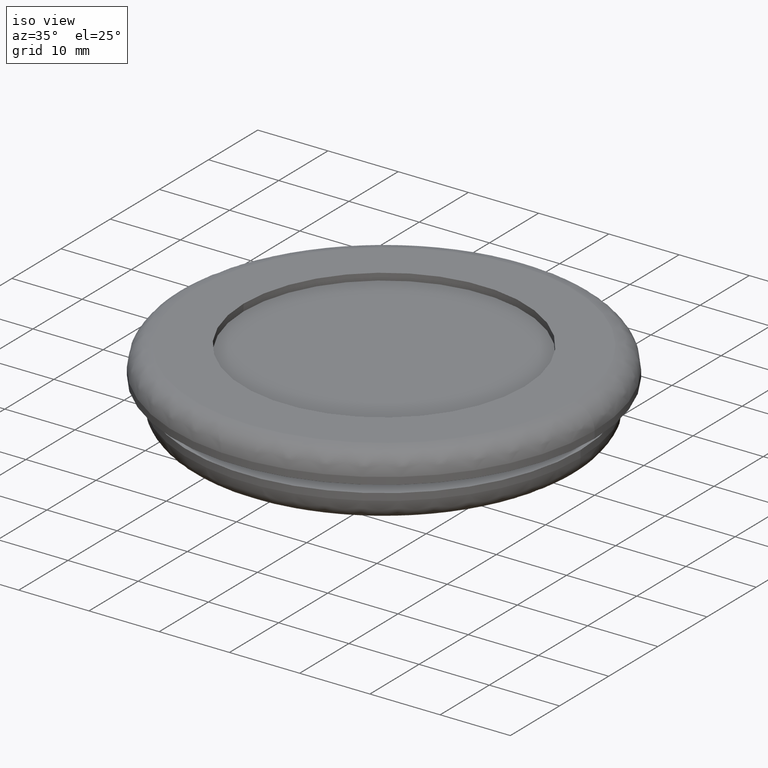
[diagram: clean part render]
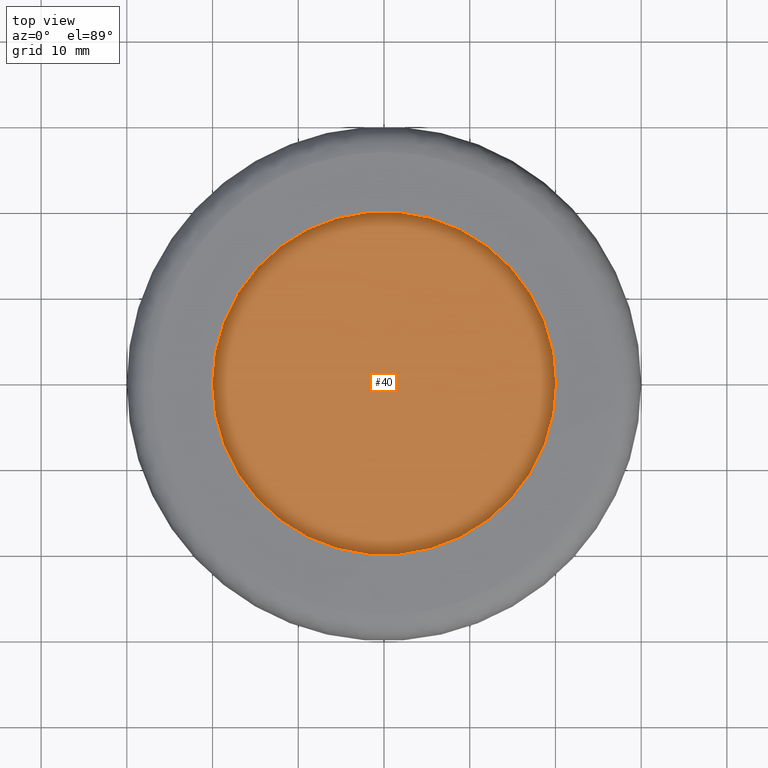
[diagram: tour spotlight — one face highlighted and labeled with its STEP entity id]
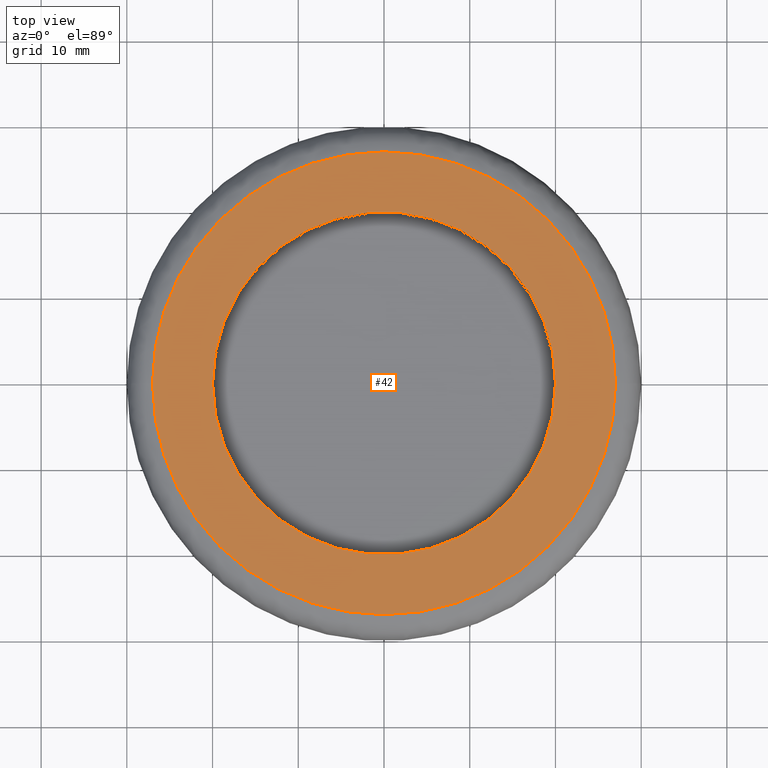
[diagram: tour spotlight — one face highlighted and labeled with its STEP entity id]
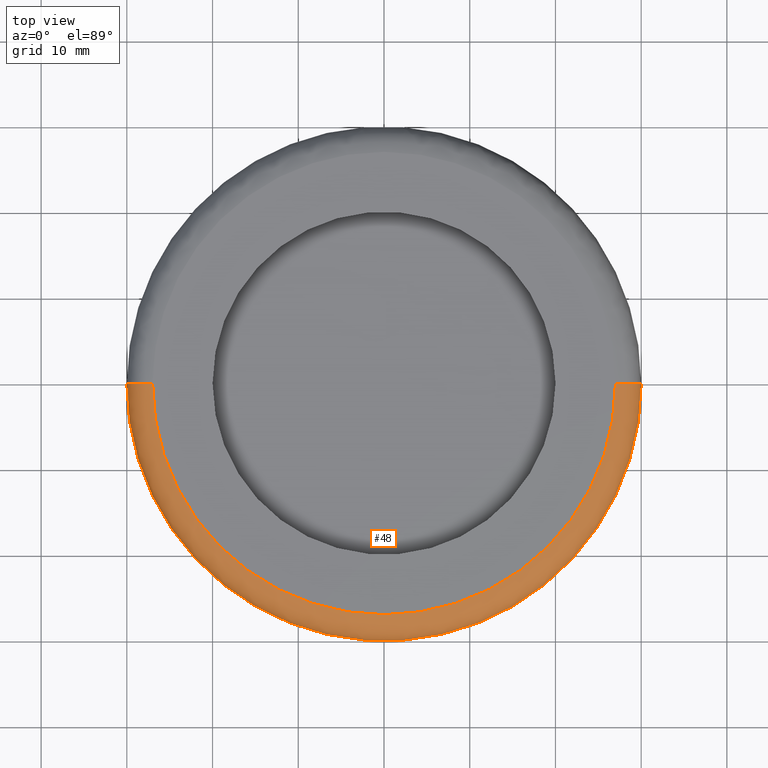
[diagram: tour spotlight — one face highlighted and labeled with its STEP entity id]
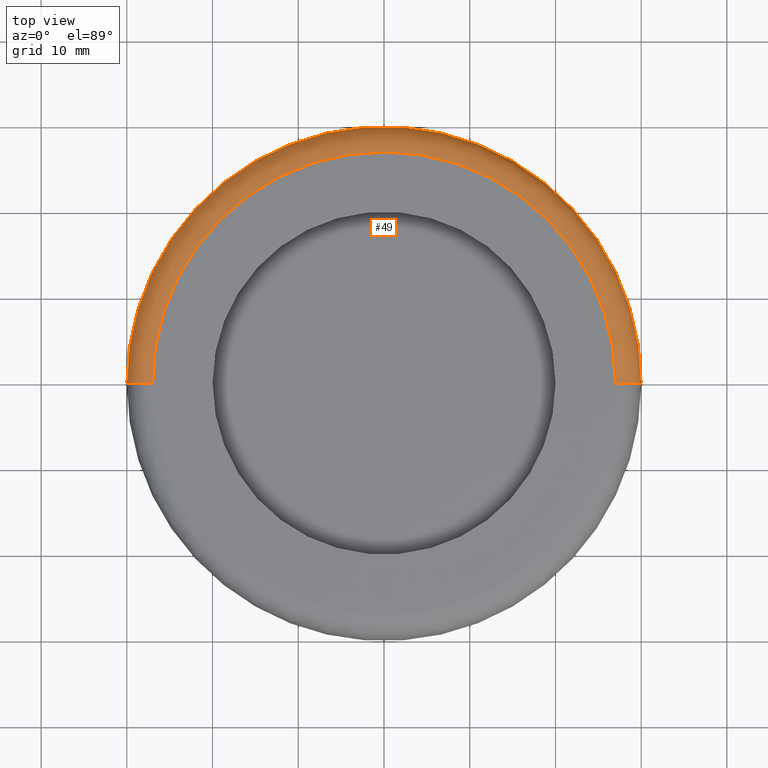
[diagram: tour spotlight — one face highlighted and labeled with its STEP entity id]
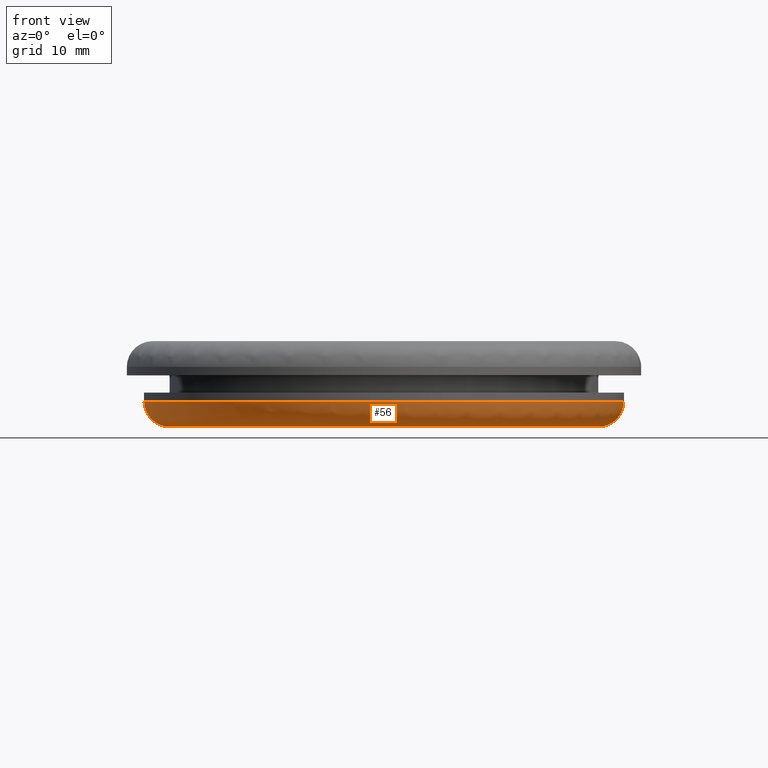
[diagram: tour spotlight — one face highlighted and labeled with its STEP entity id]
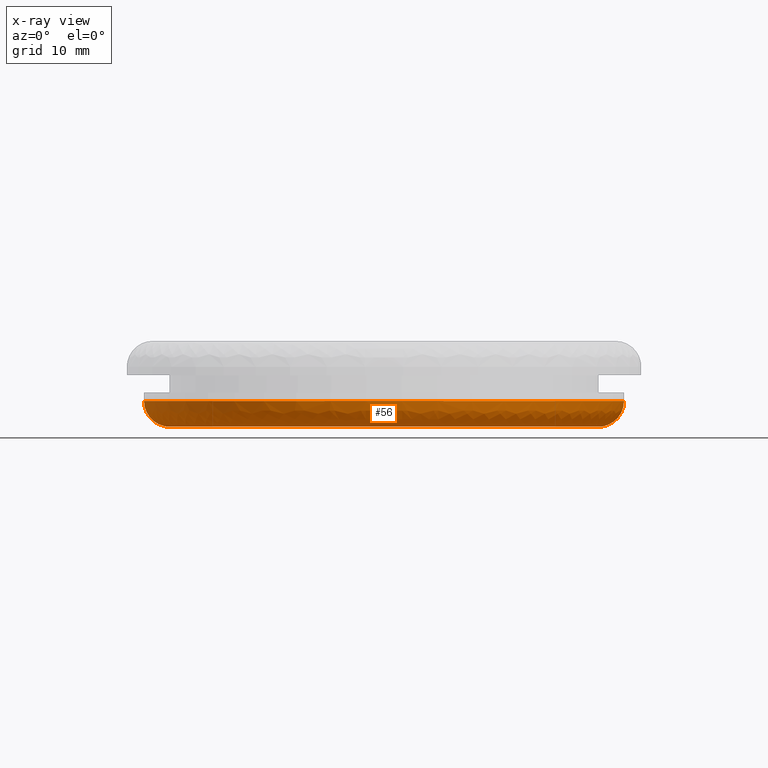
[diagram: x-ray of the same camera — body ghosted, this tour face saturated]
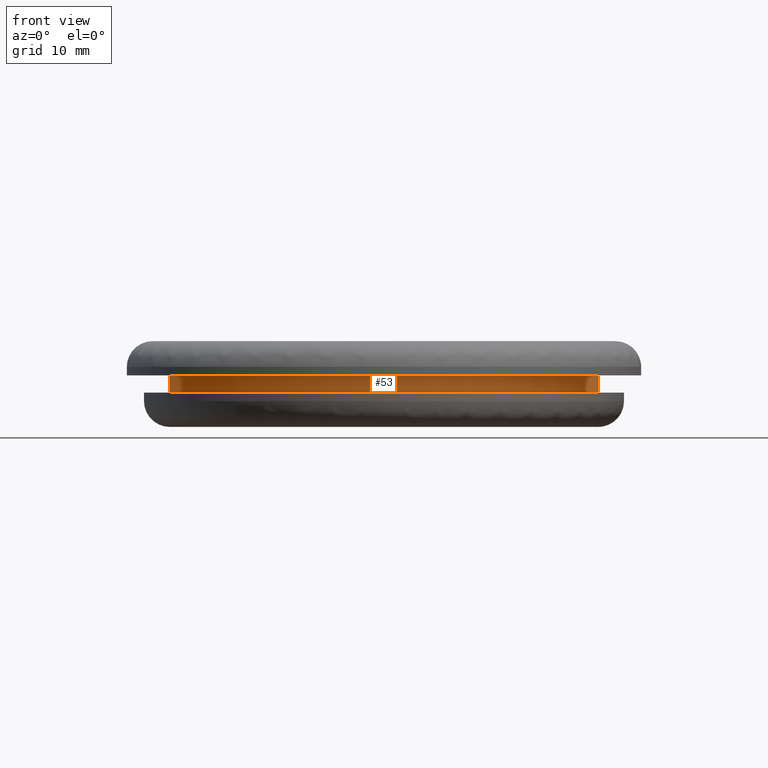
[diagram: tour spotlight — one face highlighted and labeled with its STEP entity id]
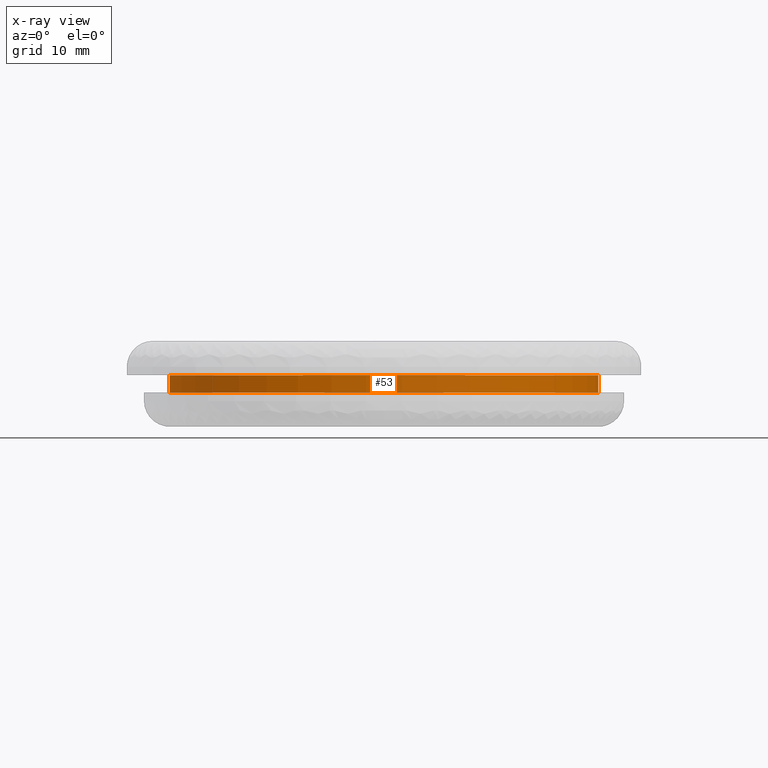
[diagram: x-ray of the same camera — body ghosted, this tour face saturated]
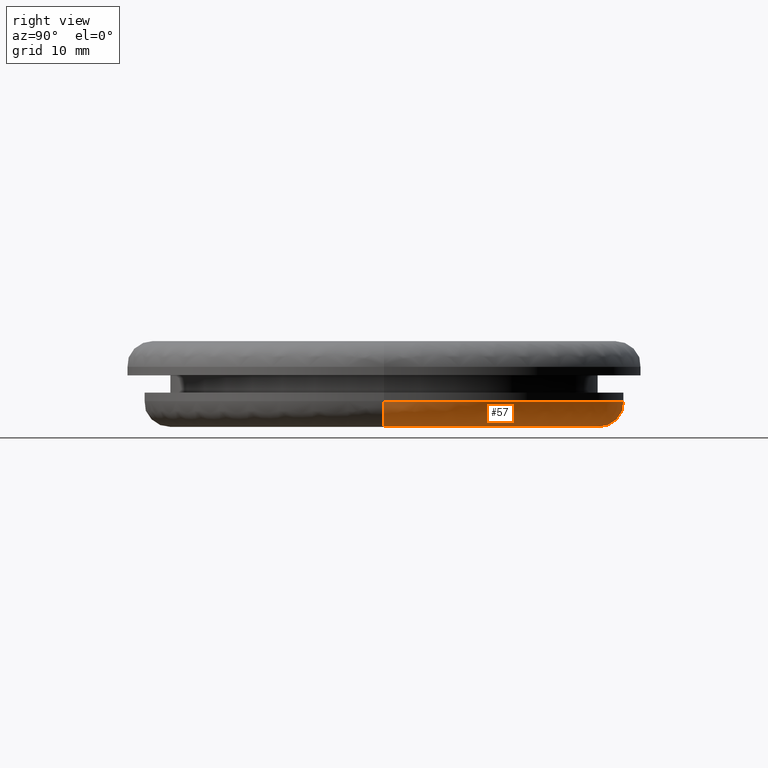
[diagram: tour spotlight — one face highlighted and labeled with its STEP entity id]
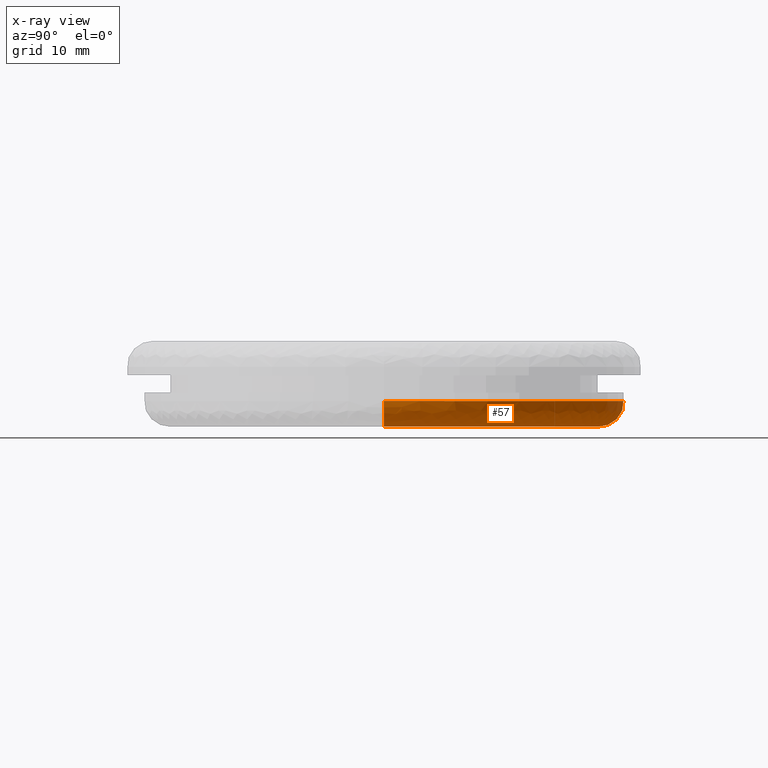
[diagram: x-ray of the same camera — body ghosted, this tour face saturated]
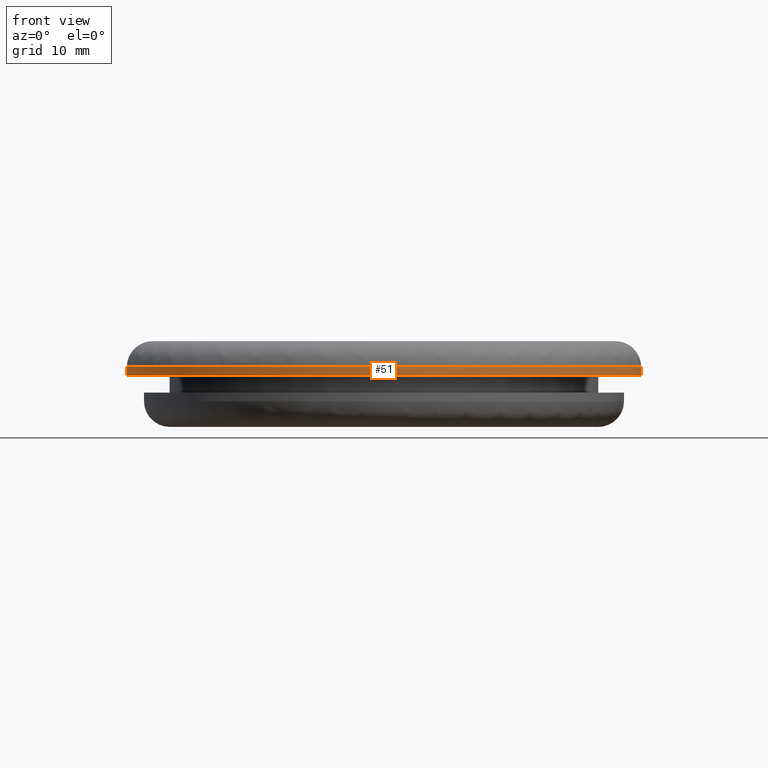
[diagram: tour spotlight — one face highlighted and labeled with its STEP entity id]
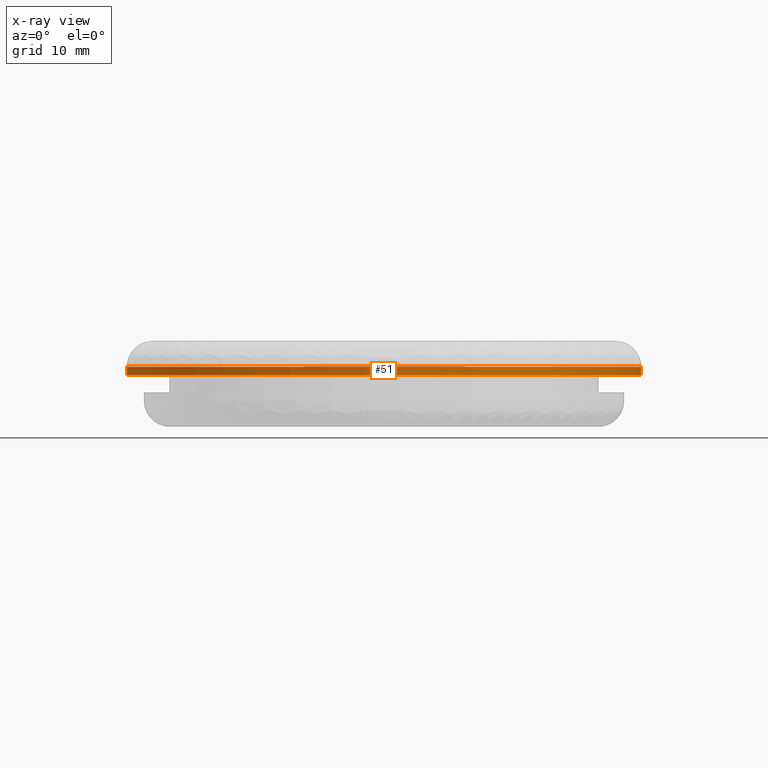
[diagram: x-ray of the same camera — body ghosted, this tour face saturated]
A machine part: a face-by-face anatomy tour. The part has 20 B-rep faces; the first image is the clean iso view, then the 8 largest visible faces are spotlighted one at a time (largest first), each with its STEP entity span.

Face 1 — top view, entity #40. In plain terms, the highlighted planar face has unit normal (-0, 0, -1).
Definition (entity closure, byte-faithful):
#40=ADVANCED_FACE('',(#61),#60,.F.);
#60=PLANE('',#267);
#61=FACE_OUTER_BOUND('',#268,.T.);
#264=CARTESIAN_POINT('',(4.60000000000E+01,-4.15692193817E+01,-1.00000000000E+00));
#265=DIRECTION('',(-0.00000000000E+00,0.00000000000E+00,-1.00000000000E+00));
#266=DIRECTION('',(-1.00000000000E+00,0.00000000000E+00,0.00000000000E+00));
#267=AXIS2_PLACEMENT_3D('',#264,#265,#266);
#268=EDGE_LOOP('',(#452,#453));
#452=ORIENTED_EDGE('',*,*,#528,.F.);
#453=ORIENTED_EDGE('',*,*,#529,.F.);
#528=EDGE_CURVE('',#566,#567,#568,.T.);
#529=EDGE_CURVE('',#567,#566,#574,.T.);
#566=VERTEX_POINT('',#818);
#567=VERTEX_POINT('',#819);
#568=CIRCLE('',#823,2.00000000000E+01);
#574=CIRCLE('',#827,2.00000000000E+01);
#818=CARTESIAN_POINT('',(2.00000000000E+01,0.00000000000E+00,-1.00000000000E+00));
#819=CARTESIAN_POINT('',(-2.00000000000E+01,0.00000000000E+00,-1.00000000000E+00));
#820=CARTESIAN_POINT('',(-1.19371179608E-12,0.00000000000E+00,-1.00000000000E+00));
#821=DIRECTION('',(-0.00000000000E+00,0.00000000000E+00,-1.00000000000E+00));
#822=DIRECTION('',(-1.00000000000E+00,-1.22460635382E-16,0.00000000000E+00));
#823=AXIS2_PLACEMENT_3D('',#820,#821,#822);
#824=CARTESIAN_POINT('',(-1.19371179608E-12,0.00000000000E+00,-1.00000000000E+00));
#825=DIRECTION('',(-0.00000000000E+00,0.00000000000E+00,-1.00000000000E+00));
#826=DIRECTION('',(-1.00000000000E+00,-1.22460635382E-16,0.00000000000E+00));
#827=AXIS2_PLACEMENT_3D('',#824,#825,#826);

Face 2 — top view, entity #42. In plain terms, the highlighted planar face has unit normal (-0, 0, -1).
Definition (entity closure, byte-faithful):
#42=ADVANCED_FACE('',(#81,#82),#80,.F.);
#80=PLANE('',#277);
#81=FACE_OUTER_BOUND('',#278,.T.);
#82=FACE_BOUND('',#279,.T.);
#274=CARTESIAN_POINT('',(6.21000000000E+01,-5.61184461653E+01,-2.84217094302E-14));
#275=DIRECTION('',(-0.00000000000E+00,0.00000000000E+00,-1.00000000000E+00));
#276=DIRECTION('',(-1.00000000000E+00,0.00000000000E+00,0.00000000000E+00));
#277=AXIS2_PLACEMENT_3D('',#274,#275,#276);
#278=EDGE_LOOP('',(#456,#457));
#279=EDGE_LOOP('',(#458,#459));
#456=ORIENTED_EDGE('',*,*,#532,.F.);
#457=ORIENTED_EDGE('',*,*,#533,.F.);
#458=ORIENTED_EDGE('',*,*,#534,.T.);
#459=ORIENTED_EDGE('',*,*,#535,.T.);
#532=EDGE_CURVE('',#594,#595,#596,.T.);
#533=EDGE_CURVE('',#595,#594,#602,.T.);
#534=EDGE_CURVE('',#608,#609,#610,.T.);
#535=EDGE_CURVE('',#609,#608,#616,.T.);
#594=VERTEX_POINT('',#838);
#595=VERTEX_POINT('',#839);
#596=CIRCLE('',#843,2.70000000000E+01);
#602=CIRCLE('',#847,2.70000000000E+01);
#608=VERTEX_POINT('',#848);
#609=VERTEX_POINT('',#849);
#610=CIRCLE('',#853,2.00000000000E+01);
#616=CIRCLE('',#857,2.00000000000E+01);
#838=CARTESIAN_POINT('',(2.70000000000E+01,1.18423789293E-15,-2.84217094304E-14));
#839=CARTESIAN_POINT('',(-2.70000000000E+01,0.00000000000E+00,-2.84217094304E-14));
#840=CARTESIAN_POINT('',(-1.19371179608E-12,0.00000000000E+00,-2.84217094304E-14));
#841=DIRECTION('',(-0.00000000000E+00,0.00000000000E+00,-1.00000000000E+00));
#842=DIRECTION('',(-1.00000000000E+00,-1.22460635382E-16,0.00000000000E+00));
#843=AXIS2_PLACEMENT_3D('',#840,#841,#842);
#844=CARTESIAN_POINT('',(-1.19371179608E-12,0.00000000000E+00,-2.84217094304E-14));
#845=DIRECTION('',(-0.00000000000E+00,0.00000000000E+00,-1.00000000000E+00));
#846=DIRECTION('',(-1.00000000000E+00,-1.22460635382E-16,0.00000000000E+00));
#847=AXIS2_PLACEMENT_3D('',#844,#845,#846);
#848=CARTESIAN_POINT('',(-2.00000000000E+01,0.00000000000E+00,-2.84217094299E-14));
#849=CARTESIAN_POINT('',(2.00000000000E+01,0.00000000000E+00,-2.84217094299E-14));
#850=CARTESIAN_POINT('',(-1.19371179608E-12,0.00000000000E+00,-2.84217094299E-14));
#851=DIRECTION('',(-0.00000000000E+00,0.00000000000E+00,-1.00000000000E+00));
#852=DIRECTION('',(-1.00000000000E+00,-1.22460635382E-16,0.00000000000E+00));
#853=AXIS2_PLACEMENT_3D('',#850,#851,#852);
#854=CARTESIAN_POINT('',(-1.19371179608E-12,0.00000000000E+00,-2.84217094299E-14));
#855=DIRECTION('',(-0.00000000000E+00,0.00000000000E+00,-1.00000000000E+00));
#856=DIRECTION('',(-1.00000000000E+00,-1.22460635382E-16,0.00000000000E+00));
#857=AXIS2_PLACEMENT_3D('',#854,#855,#856);

Face 3 — top view, entity #48. In plain terms, the highlighted face is a freeform B-spline surface patch.
Definition (entity closure, byte-faithful):
#48=ADVANCED_FACE('',(#145),#144,.T.);
#144=( BOUNDED_SURFACE() B_SPLINE_SURFACE( 2,2,((#308,#309,#310,#311,#312),(#313,#314,#315,#316,#317),(#318,#319,#320,#321,#322),(#323,#324,#325,#326,#327),(#328,#329,#330,#331,#332)), .UNSPECIFIED.,.F.,.F.,.F.) B_SPLINE_SURFACE_WITH_KNOTS((3,2,3),(3,2,3),(0.00000000000E+00,5.00000000000E-01,1.00000000000E+00),(0.00000000000E+00,5.00000000000E-01,1.00000000000E+00), .UNSPECIFIED. ) GEOMETRIC_REPRESENTATION_ITEM() RATIONAL_B_SPLINE_SURFACE(((1.00000000000E+00,7.07106781187E-01,1.00000000000E+00,7.07106781187E-01,1.00000000000E+00),(7.07106781187E-01,5.00000000000E-01,7.07106781187E-01,5.00000000000E-01,7.07106781187E-01),(1.00000000000E+00,7.07106781187E-01,1.00000000000E+00,7.07106781187E-01,1.00000000000E+00),(7.07106781187E-01,5.00000000000E-01,7.07106781187E-01,5.00000000000E-01,7.07106781187E-01),(1.00000000000E+00,7.07106781187E-01,1.00000000000E+00,7.07106781187E-01,1.00000000000E+00))) REPRESENTATION_ITEM('') SURFACE() );
#145=FACE_OUTER_BOUND('',#333,.T.);
#308=CARTESIAN_POINT('',(2.40000000000E+01,-2.93905524918E-15,-3.00000000000E+00));
#309=CARTESIAN_POINT('',(2.40000000000E+01,-2.93905524918E-15,-2.95177382233E-14));
#310=CARTESIAN_POINT('',(2.70000000000E+01,-3.30643715532E-15,-2.84217094304E-14));
#311=CARTESIAN_POINT('',(3.00000000000E+01,-3.67381906147E-15,-2.76336272728E-14));
#312=CARTESIAN_POINT('',(3.00000000000E+01,-3.67381906147E-15,-3.00000000000E+00));
#313=CARTESIAN_POINT('',(2.40000000000E+01,-2.40000000000E+01,-3.00000000000E+00));
#314=CARTESIAN_POINT('',(2.40000000000E+01,-2.40000000000E+01,-2.95177382233E-14));
#315=CARTESIAN_POINT('',(2.70000000000E+01,-2.70000000000E+01,-2.84217094304E-14));
#316=CARTESIAN_POINT('',(3.00000000000E+01,-3.00000000000E+01,-2.76336272728E-14));
#317=CARTESIAN_POINT('',(3.00000000000E+01,-3.00000000000E+01,-3.00000000000E+00));
#318=CARTESIAN_POINT('',(-1.19495923056E-12,-2.40000000000E+01,-3.00000000000E+00));
#319=CARTESIAN_POINT('',(-1.19495923056E-12,-2.40000000000E+01,-2.95177382233E-14));
#320=CARTESIAN_POINT('',(-1.19514291545E-12,-2.70000000000E+01,-2.84217094304E-14));
#321=CARTESIAN_POINT('',(-1.19532660033E-12,-3.00000000000E+01,-2.76336272728E-14));
#322=CARTESIAN_POINT('',(-1.19532660033E-12,-3.00000000000E+01,-3.00000000000E+00));
#323=CARTESIAN_POINT('',(-2.40000000000E+01,-2.40000000000E+01,-3.00000000000E+00));
#324=CARTESIAN_POINT('',(-2.40000000000E+01,-2.40000000000E+01,-2.95177382233E-14));
#325=CARTESIAN_POINT('',(-2.70000000000E+01,-2.70000000000E+01,-2.84217094304E-14));
#326=CARTESIAN_POINT('',(-3.00000000000E+01,-3.00000000000E+01,-2.76336272728E-14));
#327=CARTESIAN_POINT('',(-3.00000000000E+01,-3.00000000000E+01,-3.00000000000E+00));
#328=CARTESIAN_POINT('',(-2.40000000000E+01,-9.70687799425E-20,-3.00000000000E+00));
#329=CARTESIAN_POINT('',(-2.40000000000E+01,-9.70687799427E-20,-2.95177382233E-14));
#330=CARTESIAN_POINT('',(-2.70000000000E+01,-1.09202377435E-19,-2.84217094304E-14));
#331=CARTESIAN_POINT('',(-3.00000000000E+01,-1.21335974928E-19,-2.76336272728E-14));
#332=CARTESIAN_POINT('',(-3.00000000000E+01,-1.21335974927E-19,-3.00000000000E+00));
#333=EDGE_LOOP('',(#480,#481,#482,#483));
#480=ORIENTED_EDGE('',*,*,#550,.F.);
#481=ORIENTED_EDGE('',*,*,#551,.F.);
#482=ORIENTED_EDGE('',*,*,#532,.T.);
#483=ORIENTED_EDGE('',*,*,#552,.T.);
#532=EDGE_CURVE('',#594,#595,#596,.T.);
#550=EDGE_CURVE('',#718,#719,#720,.T.);
#551=EDGE_CURVE('',#594,#718,#726,.T.);
#552=EDGE_CURVE('',#595,#719,#732,.T.);
#594=VERTEX_POINT('',#838);
#595=VERTEX_POINT('',#839);
#596=CIRCLE('',#843,2.70000000000E+01);
#718=VERTEX_POINT('',#922);
#719=VERTEX_POINT('',#923);
#720=CIRCLE('',#927,3.00000000000E+01);
#726=(BOUNDED_CURVE() B_SPLINE_CURVE(2,(#928,#929,#930),.UNSPECIFIED.,.F.,.F.) B_SPLINE_CURVE_WITH_KNOTS((3,3),(5.00000000000E-01,1.00000000000E+00),.UNSPECIFIED.) CURVE() GEOMETRIC_REPRESENTATION_ITEM() RATIONAL_B_SPLINE_CURVE((1.00000000000E+00,7.07106781187E-01,1.00000000000E+00)) REPRESENTATION_ITEM('') );
#732=(BOUNDED_CURVE() B_SPLINE_CURVE(3,(#931,#932,#933,#934,#935),.UNSPECIFIED.,.F.,.F.) B_SPLINE_CURVE_WITH_KNOTS((4,1,4),(4.99999997189E-01,7.49999998381E-01,1.00000000000E+00),.UNSPECIFIED.) CURVE() GEOMETRIC_REPRESENTATION_ITEM() RATIONAL_B_SPLINE_CURVE((1.00000000000E+00,1.00000000000E+00,1.00000000000E+00,1.00000000000E+00,1.00000000000E+00)) REPRESENTATION_ITEM('') );
#838=CARTESIAN_POINT('',(2.70000000000E+01,1.18423789293E-15,-2.84217094304E-14));
#839=CARTESIAN_POINT('',(-2.70000000000E+01,0.00000000000E+00,-2.84217094304E-14));
#840=CARTESIAN_POINT('',(-1.19371179608E-12,0.00000000000E+00,-2.84217094304E-14));
#841=DIRECTION('',(-0.00000000000E+00,0.00000000000E+00,-1.00000000000E+00));
#842=DIRECTION('',(-1.00000000000E+00,-1.22460635382E-16,0.00000000000E+00));
#843=AXIS2_PLACEMENT_3D('',#840,#841,#842);
#922=CARTESIAN_POINT('',(3.00000000000E+01,3.55271367880E-15,-3.00000000000E+00));
#923=CARTESIAN_POINT('',(-3.00000000000E+01,0.00000000000E+00,-3.00000000000E+00));
#924=CARTESIAN_POINT('',(-1.19371179608E-12,0.00000000000E+00,-3.00000000000E+00));
#925=DIRECTION('',(-0.00000000000E+00,0.00000000000E+00,-1.00000000000E+00));
#926=DIRECTION('',(-1.00000000000E+00,-1.22460635382E-16,0.00000000000E+00));
#927=AXIS2_PLACEMENT_3D('',#924,#925,#926);
#928=CARTESIAN_POINT('',(2.70000000000E+01,-3.30643715532E-15,-2.84217094304E-14));
#929=CARTESIAN_POINT('',(3.00000000000E+01,-3.67381906147E-15,-2.76336272728E-14));
#930=CARTESIAN_POINT('',(3.00000000000E+01,-3.67381906147E-15,-3.00000000000E+00));
#931=CARTESIAN_POINT('',(-2.69999999762E+01,2.36847580032E-15,-2.85165256229E-14));
#932=CARTESIAN_POINT('',(-2.77783512986E+01,2.61992515382E-15,6.67218403793E-03));
#933=CARTESIAN_POINT('',(-2.93501289310E+01,3.43755912233E-15,-6.49871048928E-01));
#934=CARTESIAN_POINT('',(-3.00066721779E+01,4.37916650539E-15,-2.22164867623E+00));
#935=CARTESIAN_POINT('',(-3.00000000000E+01,4.73695157173E-15,-3.00000000000E+00));

Face 4 — top view, entity #49. In plain terms, the highlighted face is a freeform B-spline surface patch.
Definition (entity closure, byte-faithful):
#49=ADVANCED_FACE('',(#155),#154,.T.);
#154=( BOUNDED_SURFACE() B_SPLINE_SURFACE( 2,2,((#334,#335,#336,#337,#338),(#339,#340,#341,#342,#343),(#344,#345,#346,#347,#348),(#349,#350,#351,#352,#353),(#354,#355,#356,#357,#358)), .UNSPECIFIED.,.F.,.F.,.F.) B_SPLINE_SURFACE_WITH_KNOTS((3,2,3),(3,2,3),(0.00000000000E+00,5.00000000000E-01,1.00000000000E+00),(0.00000000000E+00,5.00000000000E-01,1.00000000000E+00), .UNSPECIFIED. ) GEOMETRIC_REPRESENTATION_ITEM() RATIONAL_B_SPLINE_SURFACE(((1.00000000000E+00,7.07106781187E-01,1.00000000000E+00,7.07106781187E-01,1.00000000000E+00),(7.07106781187E-01,5.00000000000E-01,7.07106781187E-01,5.00000000000E-01,7.07106781187E-01),(1.00000000000E+00,7.07106781187E-01,1.00000000000E+00,7.07106781187E-01,1.00000000000E+00),(7.07106781187E-01,5.00000000000E-01,7.07106781187E-01,5.00000000000E-01,7.07106781187E-01),(1.00000000000E+00,7.07106781187E-01,1.00000000000E+00,7.07106781187E-01,1.00000000000E+00))) REPRESENTATION_ITEM('') SURFACE() );
#155=FACE_OUTER_BOUND('',#359,.T.);
#334=CARTESIAN_POINT('',(-2.40000000000E+01,-9.70687799423E-20,-3.00000000000E+00));
#335=CARTESIAN_POINT('',(-2.40000000000E+01,-9.70687799423E-20,-2.95177382233E-14));
#336=CARTESIAN_POINT('',(-2.70000000000E+01,-1.09202377435E-19,-2.84217094304E-14));
#337=CARTESIAN_POINT('',(-3.00000000000E+01,-1.21335974928E-19,-2.76336272728E-14));
#338=CARTESIAN_POINT('',(-3.00000000000E+01,-1.21335974928E-19,-3.00000000000E+00));
#339=CARTESIAN_POINT('',(-2.40000000000E+01,2.40000000000E+01,-3.00000000000E+00));
#340=CARTESIAN_POINT('',(-2.40000000000E+01,2.40000000000E+01,-2.95177382233E-14));
#341=CARTESIAN_POINT('',(-2.70000000000E+01,2.70000000000E+01,-2.84217094304E-14));
#342=CARTESIAN_POINT('',(-3.00000000000E+01,3.00000000000E+01,-2.76336272728E-14));
#343=CARTESIAN_POINT('',(-3.00000000000E+01,3.00000000000E+01,-3.00000000000E+00));
#344=CARTESIAN_POINT('',(-1.19495942470E-12,2.40000000000E+01,-3.00000000000E+00));
#345=CARTESIAN_POINT('',(-1.19495942470E-12,2.40000000000E+01,-2.95177382233E-14));
#346=CARTESIAN_POINT('',(-1.19514313385E-12,2.70000000000E+01,-2.84217094304E-14));
#347=CARTESIAN_POINT('',(-1.19532684301E-12,3.00000000000E+01,-2.76336272728E-14));
#348=CARTESIAN_POINT('',(-1.19532684301E-12,3.00000000000E+01,-3.00000000000E+00));
#349=CARTESIAN_POINT('',(2.40000000000E+01,2.40000000000E+01,-3.00000000000E+00));
#350=CARTESIAN_POINT('',(2.40000000000E+01,2.40000000000E+01,-2.95177382233E-14));
#351=CARTESIAN_POINT('',(2.70000000000E+01,2.70000000000E+01,-2.84217094304E-14));
#352=CARTESIAN_POINT('',(3.00000000000E+01,3.00000000000E+01,-2.76336272728E-14));
#353=CARTESIAN_POINT('',(3.00000000000E+01,3.00000000000E+01,-3.00000000000E+00));
#354=CARTESIAN_POINT('',(2.40000000000E+01,2.93924938674E-15,-3.00000000000E+00));
#355=CARTESIAN_POINT('',(2.40000000000E+01,2.93924938674E-15,-2.95177382233E-14));
#356=CARTESIAN_POINT('',(2.70000000000E+01,3.30665556008E-15,-2.84217094304E-14));
#357=CARTESIAN_POINT('',(3.00000000000E+01,3.67406173342E-15,-2.76336272728E-14));
#358=CARTESIAN_POINT('',(3.00000000000E+01,3.67406173342E-15,-3.00000000000E+00));
#359=EDGE_LOOP('',(#484,#485,#486,#487));
#484=ORIENTED_EDGE('',*,*,#533,.T.);
#485=ORIENTED_EDGE('',*,*,#551,.T.);
#486=ORIENTED_EDGE('',*,*,#553,.F.);
#487=ORIENTED_EDGE('',*,*,#552,.F.);
#533=EDGE_CURVE('',#595,#594,#602,.T.);
#551=EDGE_CURVE('',#594,#718,#726,.T.);
#552=EDGE_CURVE('',#595,#719,#732,.T.);
#553=EDGE_CURVE('',#719,#718,#738,.T.);
#594=VERTEX_POINT('',#838);
#595=VERTEX_POINT('',#839);
#602=CIRCLE('',#847,2.70000000000E+01);
#718=VERTEX_POINT('',#922);
#719=VERTEX_POINT('',#923);
#726=(BOUNDED_CURVE() B_SPLINE_CURVE(2,(#928,#929,#930),.UNSPECIFIED.,.F.,.F.) B_SPLINE_CURVE_WITH_KNOTS((3,3),(5.00000000000E-01,1.00000000000E+00),.UNSPECIFIED.) CURVE() GEOMETRIC_REPRESENTATION_ITEM() RATIONAL_B_SPLINE_CURVE((1.00000000000E+00,7.07106781187E-01,1.00000000000E+00)) REPRESENTATION_ITEM('') );
#732=(BOUNDED_CURVE() B_SPLINE_CURVE(3,(#931,#932,#933,#934,#935),.UNSPECIFIED.,.F.,.F.) B_SPLINE_CURVE_WITH_KNOTS((4,1,4),(4.99999997189E-01,7.49999998381E-01,1.00000000000E+00),.UNSPECIFIED.) CURVE() GEOMETRIC_REPRESENTATION_ITEM() RATIONAL_B_SPLINE_CURVE((1.00000000000E+00,1.00000000000E+00,1.00000000000E+00,1.00000000000E+00,1.00000000000E+00)) REPRESENTATION_ITEM('') );
#738=CIRCLE('',#939,3.00000000000E+01);
#838=CARTESIAN_POINT('',(2.70000000000E+01,1.18423789293E-15,-2.84217094304E-14));
#839=CARTESIAN_POINT('',(-2.70000000000E+01,0.00000000000E+00,-2.84217094304E-14));
#844=CARTESIAN_POINT('',(-1.19371179608E-12,0.00000000000E+00,-2.84217094304E-14));
#845=DIRECTION('',(-0.00000000000E+00,0.00000000000E+00,-1.00000000000E+00));
#846=DIRECTION('',(-1.00000000000E+00,-1.22460635382E-16,0.00000000000E+00));
#847=AXIS2_PLACEMENT_3D('',#844,#845,#846);
#922=CARTESIAN_POINT('',(3.00000000000E+01,3.55271367880E-15,-3.00000000000E+00));
#923=CARTESIAN_POINT('',(-3.00000000000E+01,0.00000000000E+00,-3.00000000000E+00));
#928=CARTESIAN_POINT('',(2.70000000000E+01,-3.30643715532E-15,-2.84217094304E-14));
#929=CARTESIAN_POINT('',(3.00000000000E+01,-3.67381906147E-15,-2.76336272728E-14));
#930=CARTESIAN_POINT('',(3.00000000000E+01,-3.67381906147E-15,-3.00000000000E+00));
#931=CARTESIAN_POINT('',(-2.69999999762E+01,2.36847580032E-15,-2.85165256229E-14));
#932=CARTESIAN_POINT('',(-2.77783512986E+01,2.61992515382E-15,6.67218403793E-03));
#933=CARTESIAN_POINT('',(-2.93501289310E+01,3.43755912233E-15,-6.49871048928E-01));
#934=CARTESIAN_POINT('',(-3.00066721779E+01,4.37916650539E-15,-2.22164867623E+00));
#935=CARTESIAN_POINT('',(-3.00000000000E+01,4.73695157173E-15,-3.00000000000E+00));
#936=CARTESIAN_POINT('',(-1.19371179608E-12,0.00000000000E+00,-3.00000000000E+00));
#937=DIRECTION('',(-0.00000000000E+00,0.00000000000E+00,-1.00000000000E+00));
#938=DIRECTION('',(-1.00000000000E+00,-1.22460635382E-16,0.00000000000E+00));
#939=AXIS2_PLACEMENT_3D('',#936,#937,#938);

Face 5 — front view, entity #56. An x-ray twin of the same camera follows (body ghosted, this face saturated) — the face is partly hidden behind the body. In plain terms, the highlighted face is a freeform B-spline surface patch.
Definition (entity closure, byte-faithful):
#56=ADVANCED_FACE('',(#225),#224,.T.);
#224=( BOUNDED_SURFACE() B_SPLINE_SURFACE( 2,2,((#390,#391,#392,#393,#394),(#395,#396,#397,#398,#399),(#400,#401,#402,#403,#404),(#405,#406,#407,#408,#409),(#410,#411,#412,#413,#414)), .UNSPECIFIED.,.F.,.F.,.F.) B_SPLINE_SURFACE_WITH_KNOTS((3,2,3),(3,2,3),(0.00000000000E+00,5.00000000000E-01,1.00000000000E+00),(0.00000000000E+00,5.00000000000E-01,1.00000000000E+00), .UNSPECIFIED. ) GEOMETRIC_REPRESENTATION_ITEM() RATIONAL_B_SPLINE_SURFACE(((1.00000000000E+00,7.07106781187E-01,1.00000000000E+00,7.07106781187E-01,1.00000000000E+00),(7.07106781187E-01,5.00000000000E-01,7.07106781187E-01,5.00000000000E-01,7.07106781187E-01),(1.00000000000E+00,7.07106781187E-01,1.00000000000E+00,7.07106781187E-01,1.00000000000E+00),(7.07106781187E-01,5.00000000000E-01,7.07106781187E-01,5.00000000000E-01,7.07106781187E-01),(1.00000000000E+00,7.07106781187E-01,1.00000000000E+00,7.07106781187E-01,1.00000000000E+00))) REPRESENTATION_ITEM('') SURFACE() );
#225=FACE_OUTER_BOUND('',#415,.T.);
#390=CARTESIAN_POINT('',(2.80000000000E+01,-3.42889779070E-15,-7.00000000000E+00));
#391=CARTESIAN_POINT('',(2.80000000000E+01,-3.42889779070E-15,-1.00000000000E+01));
#392=CARTESIAN_POINT('',(2.50000000000E+01,-3.06151588456E-15,-1.00000000000E+01));
#393=CARTESIAN_POINT('',(2.20000000000E+01,-2.69413397841E-15,-1.00000000000E+01));
#394=CARTESIAN_POINT('',(2.20000000000E+01,-2.69413397841E-15,-7.00000000000E+00));
#395=CARTESIAN_POINT('',(2.80000000000E+01,-2.80000000000E+01,-7.00000000000E+00));
#396=CARTESIAN_POINT('',(2.80000000000E+01,-2.80000000000E+01,-1.00000000000E+01));
#397=CARTESIAN_POINT('',(2.50000000000E+01,-2.50000000000E+01,-1.00000000000E+01));
#398=CARTESIAN_POINT('',(2.20000000000E+01,-2.20000000000E+01,-1.00000000000E+01));
#399=CARTESIAN_POINT('',(2.20000000000E+01,-2.20000000000E+01,-7.00000000000E+00));
#400=CARTESIAN_POINT('',(-1.19520414374E-12,-2.80000000000E+01,-7.00000000000E+00));
#401=CARTESIAN_POINT('',(-1.19520414374E-12,-2.80000000000E+01,-1.00000000000E+01));
#402=CARTESIAN_POINT('',(-1.19502045886E-12,-2.50000000000E+01,-1.00000000000E+01));
#403=CARTESIAN_POINT('',(-1.19483677397E-12,-2.20000000000E+01,-1.00000000000E+01));
#404=CARTESIAN_POINT('',(-1.19483677397E-12,-2.20000000000E+01,-7.00000000000E+00));
#405=CARTESIAN_POINT('',(-2.80000000000E+01,-2.80000000000E+01,-7.00000000000E+00));
#406=CARTESIAN_POINT('',(-2.80000000000E+01,-2.80000000000E+01,-1.00000000000E+01));
#407=CARTESIAN_POINT('',(-2.50000000000E+01,-2.50000000000E+01,-1.00000000000E+01));
#408=CARTESIAN_POINT('',(-2.20000000000E+01,-2.20000000000E+01,-1.00000000000E+01));
#409=CARTESIAN_POINT('',(-2.20000000000E+01,-2.20000000000E+01,-7.00000000000E+00));
#410=CARTESIAN_POINT('',(-2.80000000000E+01,-1.13246909933E-19,-7.00000000000E+00));
#411=CARTESIAN_POINT('',(-2.80000000000E+01,-1.13246909933E-19,-1.00000000000E+01));
#412=CARTESIAN_POINT('',(-2.50000000000E+01,-1.01113312440E-19,-1.00000000000E+01));
#413=CARTESIAN_POINT('',(-2.20000000000E+01,-8.89797149475E-20,-1.00000000000E+01));
#414=CARTESIAN_POINT('',(-2.20000000000E+01,-8.89797149472E-20,-7.00000000000E+00));
#415=EDGE_LOOP('',(#512,#513,#514,#515));
#512=ORIENTED_EDGE('',*,*,#545,.F.);
#513=ORIENTED_EDGE('',*,*,#562,.F.);
#514=ORIENTED_EDGE('',*,*,#561,.T.);
#515=ORIENTED_EDGE('',*,*,#563,.T.);
#545=EDGE_CURVE('',#679,#678,#686,.T.);
#561=EDGE_CURVE('',#768,#775,#788,.T.);
#562=EDGE_CURVE('',#768,#679,#794,.T.);
#563=EDGE_CURVE('',#775,#678,#800,.T.);
#678=VERTEX_POINT('',#898);
#679=VERTEX_POINT('',#899);
#686=CIRCLE('',#907,2.50000000000E+01);
#768=VERTEX_POINT('',#948);
#775=VERTEX_POINT('',#951);
#788=CIRCLE('',#961,2.80000000000E+01);
#794=(BOUNDED_CURVE() B_SPLINE_CURVE(2,(#962,#963,#964),.UNSPECIFIED.,.F.,.F.) B_SPLINE_CURVE_WITH_KNOTS((3,3),(0.00000000000E+00,5.00000000000E-01),.UNSPECIFIED.) CURVE() GEOMETRIC_REPRESENTATION_ITEM() RATIONAL_B_SPLINE_CURVE((1.00000000000E+00,7.07106781187E-01,1.00000000000E+00)) REPRESENTATION_ITEM('') );
#800=(BOUNDED_CURVE() B_SPLINE_CURVE(3,(#965,#966,#967,#968,#969),.UNSPECIFIED.,.F.,.F.) B_SPLINE_CURVE_WITH_KNOTS((4,1,4),(0.00000000000E+00,2.50000001641E-01,5.00000002850E-01),.UNSPECIFIED.) CURVE() GEOMETRIC_REPRESENTATION_ITEM() RATIONAL_B_SPLINE_CURVE((1.00000000000E+00,1.00000000000E+00,1.00000000000E+00,1.00000000000E+00,1.00000000000E+00)) REPRESENTATION_ITEM('') );
#898=CARTESIAN_POINT('',(-2.50000000000E+01,0.00000000000E+00,-1.00000000000E+01));
#899=CARTESIAN_POINT('',(2.50000000000E+01,-1.18423789293E-15,-1.00000000000E+01));
#904=CARTESIAN_POINT('',(-1.19371179608E-12,0.00000000000E+00,-1.00000000000E+01));
#905=DIRECTION('',(-0.00000000000E+00,0.00000000000E+00,-1.00000000000E+00));
#906=DIRECTION('',(-1.00000000000E+00,-1.22460635382E-16,0.00000000000E+00));
#907=AXIS2_PLACEMENT_3D('',#904,#905,#906);
#948=CARTESIAN_POINT('',(2.80000000000E+01,1.18423789293E-15,-7.00000000000E+00));
#951=CARTESIAN_POINT('',(-2.80000000000E+01,0.00000000000E+00,-7.00000000000E+00));
#958=CARTESIAN_POINT('',(-1.19371179608E-12,0.00000000000E+00,-7.00000000000E+00));
#959=DIRECTION('',(-0.00000000000E+00,0.00000000000E+00,-1.00000000000E+00));
#960=DIRECTION('',(-1.00000000000E+00,-1.22460635382E-16,0.00000000000E+00));
#961=AXIS2_PLACEMENT_3D('',#958,#959,#960);
#962=CARTESIAN_POINT('',(2.80000000000E+01,-3.42889779070E-15,-7.00000000000E+00));
#963=CARTESIAN_POINT('',(2.80000000000E+01,-3.42889779070E-15,-1.00000000000E+01));
#964=CARTESIAN_POINT('',(2.50000000000E+01,-3.06151588456E-15,-1.00000000000E+01));
#965=CARTESIAN_POINT('',(-2.80000000000E+01,2.36847578587E-15,-7.00000000000E+00));
#966=CARTESIAN_POINT('',(-2.80066721779E+01,2.62255899324E-15,-7.77835132384E+00));
#967=CARTESIAN_POINT('',(-2.73501289309E+01,3.18102515021E-15,-9.35012895124E+00));
#968=CARTESIAN_POINT('',(-2.57783512983E+01,3.50217965951E-15,-1.00066721841E+01));
#969=CARTESIAN_POINT('',(-2.49999999758E+01,3.55271368391E-15,-1.00000000000E+01));

Face 6 — front view, entity #53. An x-ray twin of the same camera follows (body ghosted, this face saturated) — the face is partly hidden behind the body. In plain terms, the highlighted cylindrical surface (partial cylindrical patch) has radius 25 mm, axis along (0, -0, 1).
Definition (entity closure, byte-faithful):
#53=ADVANCED_FACE('',(#195),#194,.T.);
#194=CYLINDRICAL_SURFACE('',#378,2.50000000000E+01);
#195=FACE_OUTER_BOUND('',#379,.T.);
#375=CARTESIAN_POINT('',(-1.19371179608E-12,0.00000000000E+00,0.00000000000E+00));
#376=DIRECTION('',(0.00000000000E+00,-0.00000000000E+00,1.00000000000E+00));
#377=DIRECTION('',(1.00000000000E+00,-0.00000000000E+00,-0.00000000000E+00));
#378=AXIS2_PLACEMENT_3D('',#375,#376,#377);
#379=EDGE_LOOP('',(#500,#501,#502,#503));
#500=ORIENTED_EDGE('',*,*,#543,.F.);
#501=ORIENTED_EDGE('',*,*,#556,.T.);
#502=ORIENTED_EDGE('',*,*,#538,.T.);
#503=ORIENTED_EDGE('',*,*,#557,.F.);
#538=EDGE_CURVE('',#636,#637,#638,.T.);
#543=EDGE_CURVE('',#665,#664,#672,.T.);
#556=EDGE_CURVE('',#665,#636,#756,.T.);
#557=EDGE_CURVE('',#664,#637,#762,.T.);
#636=VERTEX_POINT('',#868);
#637=VERTEX_POINT('',#869);
#638=CIRCLE('',#873,2.50000000000E+01);
#664=VERTEX_POINT('',#888);
#665=VERTEX_POINT('',#889);
#672=CIRCLE('',#897,2.50000000000E+01);
#756=(BOUNDED_CURVE() B_SPLINE_CURVE(1,(#944,#945),.UNSPECIFIED.,.F.,.F.) B_SPLINE_CURVE_WITH_KNOTS((2,2),(8.33333134656E-02,9.16666653270E-01),.UNSPECIFIED.) CURVE() GEOMETRIC_REPRESENTATION_ITEM() RATIONAL_B_SPLINE_CURVE((1.00000000000E+00,1.00000000000E+00)) REPRESENTATION_ITEM('') );
#762=(BOUNDED_CURVE() B_SPLINE_CURVE(1,(#946,#947),.UNSPECIFIED.,.F.,.F.) B_SPLINE_CURVE_WITH_KNOTS((2,2),(8.33333333333E-02,9.16666666667E-01),.UNSPECIFIED.) CURVE() GEOMETRIC_REPRESENTATION_ITEM() RATIONAL_B_SPLINE_CURVE((7.50000000000E-01,7.50000000000E-01)) REPRESENTATION_ITEM('') );
#868=CARTESIAN_POINT('',(2.50000000000E+01,-1.18423789293E-15,-4.00000000001E+00));
#869=CARTESIAN_POINT('',(-2.50000000000E+01,0.00000000000E+00,-4.00000000001E+00));
#870=CARTESIAN_POINT('',(-1.19371179608E-12,0.00000000000E+00,-4.00000000001E+00));
#871=DIRECTION('',(-0.00000000000E+00,0.00000000000E+00,-1.00000000000E+00));
#872=DIRECTION('',(-1.00000000000E+00,-1.22460635382E-16,0.00000000000E+00));
#873=AXIS2_PLACEMENT_3D('',#870,#871,#872);
#888=CARTESIAN_POINT('',(-2.50000000000E+01,0.00000000000E+00,-6.00000000001E+00));
#889=CARTESIAN_POINT('',(2.50000000000E+01,-1.18423789293E-15,-6.00000000001E+00));
#894=CARTESIAN_POINT('',(-1.19371179608E-12,0.00000000000E+00,-6.00000000001E+00));
#895=DIRECTION('',(-0.00000000000E+00,0.00000000000E+00,-1.00000000000E+00));
#896=DIRECTION('',(-1.00000000000E+00,-1.22460635382E-16,0.00000000000E+00));
#897=AXIS2_PLACEMENT_3D('',#894,#895,#896);
#944=CARTESIAN_POINT('',(2.50000000000E+01,0.00000000000E+00,-6.00000004769E+00));
#945=CARTESIAN_POINT('',(2.50000000000E+01,0.00000000000E+00,-4.00000003216E+00));
#946=CARTESIAN_POINT('',(-2.50000000000E+01,-1.18423789293E-15,-6.00000000001E+00));
#947=CARTESIAN_POINT('',(-2.50000000000E+01,-1.18423789293E-15,-4.00000000001E+00));

Face 7 — right view, entity #57. An x-ray twin of the same camera follows (body ghosted, this face saturated) — the face is partly hidden behind the body. In plain terms, the highlighted face is a freeform B-spline surface patch.
Definition (entity closure, byte-faithful):
#57=ADVANCED_FACE('',(#235),#234,.T.);
#234=( BOUNDED_SURFACE() B_SPLINE_SURFACE( 2,2,((#416,#417,#418,#419,#420),(#421,#422,#423,#424,#425),(#426,#427,#428,#429,#430),(#431,#432,#433,#434,#435),(#436,#437,#438,#439,#440)), .UNSPECIFIED.,.F.,.F.,.F.) B_SPLINE_SURFACE_WITH_KNOTS((3,2,3),(3,2,3),(0.00000000000E+00,5.00000000000E-01,1.00000000000E+00),(0.00000000000E+00,5.00000000000E-01,1.00000000000E+00), .UNSPECIFIED. ) GEOMETRIC_REPRESENTATION_ITEM() RATIONAL_B_SPLINE_SURFACE(((1.00000000000E+00,7.07106781187E-01,1.00000000000E+00,7.07106781187E-01,1.00000000000E+00),(7.07106781187E-01,5.00000000000E-01,7.07106781187E-01,5.00000000000E-01,7.07106781187E-01),(1.00000000000E+00,7.07106781187E-01,1.00000000000E+00,7.07106781187E-01,1.00000000000E+00),(7.07106781187E-01,5.00000000000E-01,7.07106781187E-01,5.00000000000E-01,7.07106781187E-01),(1.00000000000E+00,7.07106781187E-01,1.00000000000E+00,7.07106781187E-01,1.00000000000E+00))) REPRESENTATION_ITEM('') SURFACE() );
#235=FACE_OUTER_BOUND('',#441,.T.);
#416=CARTESIAN_POINT('',(-2.80000000000E+01,-1.13246909933E-19,-7.00000000000E+00));
#417=CARTESIAN_POINT('',(-2.80000000000E+01,-1.13246909933E-19,-1.00000000000E+01));
#418=CARTESIAN_POINT('',(-2.50000000000E+01,-1.01113312440E-19,-1.00000000000E+01));
#419=CARTESIAN_POINT('',(-2.20000000000E+01,-8.89797149471E-20,-1.00000000000E+01));
#420=CARTESIAN_POINT('',(-2.20000000000E+01,-8.89797149471E-20,-7.00000000000E+00));
#421=CARTESIAN_POINT('',(-2.80000000000E+01,2.80000000000E+01,-7.00000000000E+00));
#422=CARTESIAN_POINT('',(-2.80000000000E+01,2.80000000000E+01,-1.00000000000E+01));
#423=CARTESIAN_POINT('',(-2.50000000000E+01,2.50000000000E+01,-1.00000000000E+01));
#424=CARTESIAN_POINT('',(-2.20000000000E+01,2.20000000000E+01,-1.00000000000E+01));
#425=CARTESIAN_POINT('',(-2.20000000000E+01,2.20000000000E+01,-7.00000000000E+00));
#426=CARTESIAN_POINT('',(-1.19520437024E-12,2.80000000000E+01,-7.00000000000E+00));
#427=CARTESIAN_POINT('',(-1.19520437024E-12,2.80000000000E+01,-1.00000000000E+01));
#428=CARTESIAN_POINT('',(-1.19502066108E-12,2.50000000000E+01,-1.00000000000E+01));
#429=CARTESIAN_POINT('',(-1.19483695193E-12,2.20000000000E+01,-1.00000000000E+01));
#430=CARTESIAN_POINT('',(-1.19483695193E-12,2.20000000000E+01,-7.00000000000E+00));
#431=CARTESIAN_POINT('',(2.80000000000E+01,2.80000000000E+01,-7.00000000000E+00));
#432=CARTESIAN_POINT('',(2.80000000000E+01,2.80000000000E+01,-1.00000000000E+01));
#433=CARTESIAN_POINT('',(2.50000000000E+01,2.50000000000E+01,-1.00000000000E+01));
#434=CARTESIAN_POINT('',(2.20000000000E+01,2.20000000000E+01,-1.00000000000E+01));
#435=CARTESIAN_POINT('',(2.20000000000E+01,2.20000000000E+01,-7.00000000000E+00));
#436=CARTESIAN_POINT('',(2.80000000000E+01,3.42912428452E-15,-7.00000000000E+00));
#437=CARTESIAN_POINT('',(2.80000000000E+01,3.42912428452E-15,-1.00000000000E+01));
#438=CARTESIAN_POINT('',(2.50000000000E+01,3.06171811118E-15,-1.00000000000E+01));
#439=CARTESIAN_POINT('',(2.20000000000E+01,2.69431193784E-15,-1.00000000000E+01));
#440=CARTESIAN_POINT('',(2.20000000000E+01,2.69431193784E-15,-7.00000000000E+00));
#441=EDGE_LOOP('',(#516,#517,#518,#519));
#516=ORIENTED_EDGE('',*,*,#559,.T.);
#517=ORIENTED_EDGE('',*,*,#562,.T.);
#518=ORIENTED_EDGE('',*,*,#544,.F.);
#519=ORIENTED_EDGE('',*,*,#563,.F.);
#544=EDGE_CURVE('',#678,#679,#680,.T.);
#559=EDGE_CURVE('',#775,#768,#776,.T.);
#562=EDGE_CURVE('',#768,#679,#794,.T.);
#563=EDGE_CURVE('',#775,#678,#800,.T.);
#678=VERTEX_POINT('',#898);
#679=VERTEX_POINT('',#899);
#680=CIRCLE('',#903,2.50000000000E+01);
#768=VERTEX_POINT('',#948);
#775=VERTEX_POINT('',#951);
#776=CIRCLE('',#955,2.80000000000E+01);
#794=(BOUNDED_CURVE() B_SPLINE_CURVE(2,(#962,#963,#964),.UNSPECIFIED.,.F.,.F.) B_SPLINE_CURVE_WITH_KNOTS((3,3),(0.00000000000E+00,5.00000000000E-01),.UNSPECIFIED.) CURVE() GEOMETRIC_REPRESENTATION_ITEM() RATIONAL_B_SPLINE_CURVE((1.00000000000E+00,7.07106781187E-01,1.00000000000E+00)) REPRESENTATION_ITEM('') );
#800=(BOUNDED_CURVE() B_SPLINE_CURVE(3,(#965,#966,#967,#968,#969),.UNSPECIFIED.,.F.,.F.) B_SPLINE_CURVE_WITH_KNOTS((4,1,4),(0.00000000000E+00,2.50000001641E-01,5.00000002850E-01),.UNSPECIFIED.) CURVE() GEOMETRIC_REPRESENTATION_ITEM() RATIONAL_B_SPLINE_CURVE((1.00000000000E+00,1.00000000000E+00,1.00000000000E+00,1.00000000000E+00,1.00000000000E+00)) REPRESENTATION_ITEM('') );
#898=CARTESIAN_POINT('',(-2.50000000000E+01,0.00000000000E+00,-1.00000000000E+01));
#899=CARTESIAN_POINT('',(2.50000000000E+01,-1.18423789293E-15,-1.00000000000E+01));
#900=CARTESIAN_POINT('',(-1.19371179608E-12,0.00000000000E+00,-1.00000000000E+01));
#901=DIRECTION('',(-0.00000000000E+00,0.00000000000E+00,-1.00000000000E+00));
#902=DIRECTION('',(-1.00000000000E+00,-1.22460635382E-16,0.00000000000E+00));
#903=AXIS2_PLACEMENT_3D('',#900,#901,#902);
#948=CARTESIAN_POINT('',(2.80000000000E+01,1.18423789293E-15,-7.00000000000E+00));
#951=CARTESIAN_POINT('',(-2.80000000000E+01,0.00000000000E+00,-7.00000000000E+00));
#952=CARTESIAN_POINT('',(-1.19371179608E-12,0.00000000000E+00,-7.00000000000E+00));
#953=DIRECTION('',(-0.00000000000E+00,0.00000000000E+00,-1.00000000000E+00));
#954=DIRECTION('',(-1.00000000000E+00,-1.22460635382E-16,0.00000000000E+00));
#955=AXIS2_PLACEMENT_3D('',#952,#953,#954);
#962=CARTESIAN_POINT('',(2.80000000000E+01,-3.42889779070E-15,-7.00000000000E+00));
#963=CARTESIAN_POINT('',(2.80000000000E+01,-3.42889779070E-15,-1.00000000000E+01));
#964=CARTESIAN_POINT('',(2.50000000000E+01,-3.06151588456E-15,-1.00000000000E+01));
#965=CARTESIAN_POINT('',(-2.80000000000E+01,2.36847578587E-15,-7.00000000000E+00));
#966=CARTESIAN_POINT('',(-2.80066721779E+01,2.62255899324E-15,-7.77835132384E+00));
#967=CARTESIAN_POINT('',(-2.73501289309E+01,3.18102515021E-15,-9.35012895124E+00));
#968=CARTESIAN_POINT('',(-2.57783512983E+01,3.50217965951E-15,-1.00066721841E+01));
#969=CARTESIAN_POINT('',(-2.49999999758E+01,3.55271368391E-15,-1.00000000000E+01));

Face 8 — front view, entity #51. An x-ray twin of the same camera follows (body ghosted, this face saturated) — the face is partly hidden behind the body. In plain terms, the highlighted cylindrical surface (partial cylindrical patch) has radius 30 mm, axis along (0, -0, 1).
Definition (entity closure, byte-faithful):
#51=ADVANCED_FACE('',(#175),#174,.T.);
#174=CYLINDRICAL_SURFACE('',#368,3.00000000000E+01);
#175=FACE_OUTER_BOUND('',#369,.T.);
#365=CARTESIAN_POINT('',(-1.19371179608E-12,0.00000000000E+00,0.00000000000E+00));
#366=DIRECTION('',(0.00000000000E+00,-0.00000000000E+00,1.00000000000E+00));
#367=DIRECTION('',(1.00000000000E+00,0.00000000000E+00,0.00000000000E+00));
#368=AXIS2_PLACEMENT_3D('',#365,#366,#367);
#369=EDGE_LOOP('',(#492,#493,#494,#495));
#492=ORIENTED_EDGE('',*,*,#537,.F.);
#493=ORIENTED_EDGE('',*,*,#554,.T.);
#494=ORIENTED_EDGE('',*,*,#550,.T.);
#495=ORIENTED_EDGE('',*,*,#555,.F.);
#537=EDGE_CURVE('',#623,#622,#630,.T.);
#550=EDGE_CURVE('',#718,#719,#720,.T.);
#554=EDGE_CURVE('',#623,#718,#744,.T.);
#555=EDGE_CURVE('',#622,#719,#750,.T.);
#622=VERTEX_POINT('',#858);
#623=VERTEX_POINT('',#859);
#630=CIRCLE('',#867,3.00000000000E+01);
#718=VERTEX_POINT('',#922);
#719=VERTEX_POINT('',#923);
#720=CIRCLE('',#927,3.00000000000E+01);
#744=(BOUNDED_CURVE() B_SPLINE_CURVE(1,(#940,#941),.UNSPECIFIED.,.F.,.F.) B_SPLINE_CURVE_WITH_KNOTS((2,2),(8.33332935974E-02,9.16666633252E-01),.UNSPECIFIED.) CURVE() GEOMETRIC_REPRESENTATION_ITEM() RATIONAL_B_SPLINE_CURVE((1.00000000000E+00,1.00000000000E+00)) REPRESENTATION_ITEM('') );
#750=(BOUNDED_CURVE() B_SPLINE_CURVE(1,(#942,#943),.UNSPECIFIED.,.F.,.F.) B_SPLINE_CURVE_WITH_KNOTS((2,2),(8.33333333333E-02,9.16666666667E-01),.UNSPECIFIED.) CURVE() GEOMETRIC_REPRESENTATION_ITEM() RATIONAL_B_SPLINE_CURVE((7.50000000000E-01,7.50000000000E-01)) REPRESENTATION_ITEM('') );
#858=CARTESIAN_POINT('',(-3.00000000000E+01,0.00000000000E+00,-4.00000000001E+00));
#859=CARTESIAN_POINT('',(3.00000000000E+01,3.55271367880E-15,-4.00000000001E+00));
#864=CARTESIAN_POINT('',(-1.19371179608E-12,0.00000000000E+00,-4.00000000001E+00));
#865=DIRECTION('',(-0.00000000000E+00,0.00000000000E+00,-1.00000000000E+00));
#866=DIRECTION('',(-1.00000000000E+00,-1.22460635382E-16,0.00000000000E+00));
#867=AXIS2_PLACEMENT_3D('',#864,#865,#866);
#922=CARTESIAN_POINT('',(3.00000000000E+01,3.55271367880E-15,-3.00000000000E+00));
#923=CARTESIAN_POINT('',(-3.00000000000E+01,0.00000000000E+00,-3.00000000000E+00));
#924=CARTESIAN_POINT('',(-1.19371179608E-12,0.00000000000E+00,-3.00000000000E+00));
#925=DIRECTION('',(-0.00000000000E+00,0.00000000000E+00,-1.00000000000E+00));
#926=DIRECTION('',(-1.00000000000E+00,-1.22460635382E-16,0.00000000000E+00));
#927=AXIS2_PLACEMENT_3D('',#924,#925,#926);
#940=CARTESIAN_POINT('',(3.00000000000E+01,0.00000000000E+00,-4.00000004769E+00));
#941=CARTESIAN_POINT('',(3.00000000000E+01,0.00000000000E+00,-3.00000004010E+00));
#942=CARTESIAN_POINT('',(-3.00000000000E+01,0.00000000000E+00,-4.00000000001E+00));
#943=CARTESIAN_POINT('',(-3.00000000000E+01,0.00000000000E+00,-3.00000000000E+00));